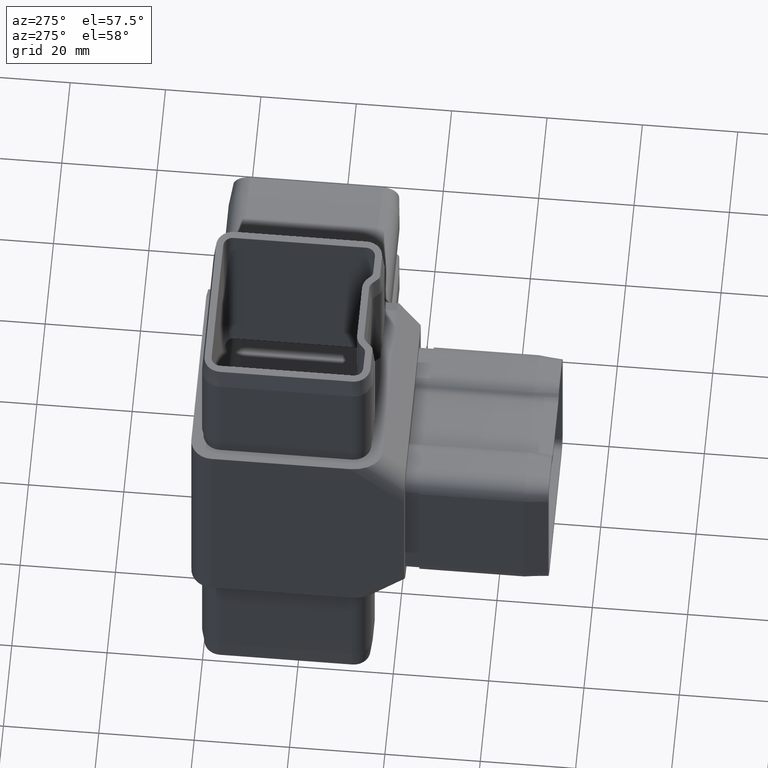
[diagram: clean part render]
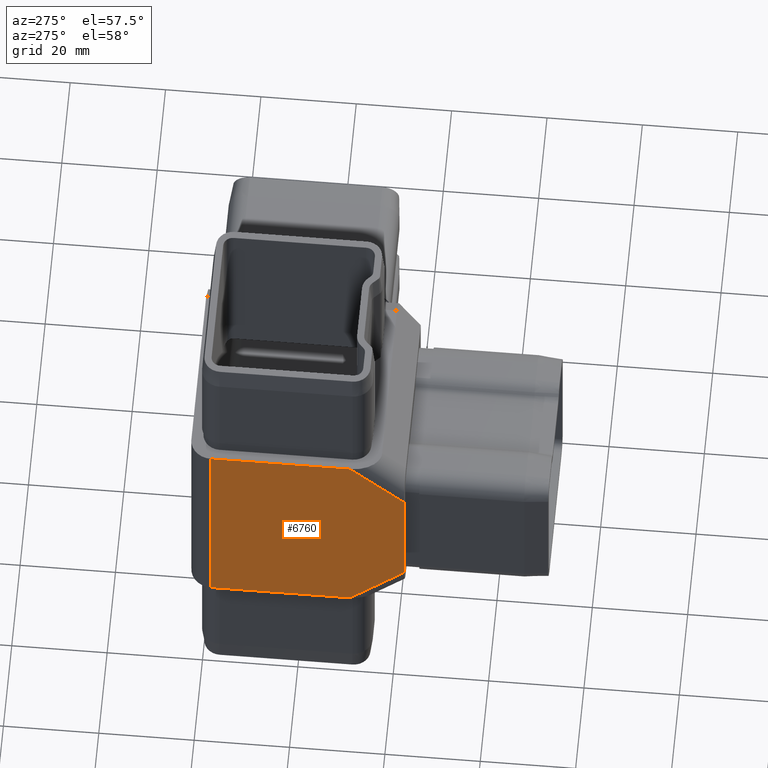
[diagram: same view with one face highlighted and labeled with its STEP entity id]
A machine part, auxiliary view. The second image highlights one B-rep face of the part: STEP entity #6760.
In plain terms, the highlighted planar face has unit normal (1, 0, -0).
Its self-contained STEP definition (entity closure, byte-faithful):
#32 = VECTOR ( 'NONE', #14871, 1000.000000000000000 ) ;
#372 = ORIENTED_EDGE ( 'NONE', *, *, #18265, .T. ) ;
#903 = CARTESIAN_POINT ( 'NONE',  ( -22.50000000000000400, -11.13603896932108000, -25.00000000000000000 ) ) ;
#1253 = CARTESIAN_POINT ( 'NONE',  ( -22.50000000000000000, -22.50000000000000400, 25.00000000000000000 ) ) ;
#1261 = VECTOR ( 'NONE', #4392, 1000.000000000000000 ) ;
#1273 = ORIENTED_EDGE ( 'NONE', *, *, #12837, .T. ) ;
#1316 = DIRECTION ( 'NONE',  ( -1.090341985197063300E-016, 0.7071067811865458000, 0.7071067811865492400 ) ) ;
#1396 = CARTESIAN_POINT ( 'NONE',  ( -22.50000000000000700, 22.49999999999999600, 25.00000000000000000 ) ) ;
#1691 = PLANE ( 'NONE',  #1954 ) ;
#1909 = VERTEX_POINT ( 'NONE', #6152 ) ;
#1954 = AXIS2_PLACEMENT_3D ( 'NONE', #1396, #11079, #15968 ) ;
#2343 = FACE_OUTER_BOUND ( 'NONE', #4366, .T. ) ;
#2513 = VERTEX_POINT ( 'NONE', #903 ) ;
#3083 = VERTEX_POINT ( 'NONE', #6762 ) ;
#3397 = EDGE_CURVE ( 'NONE', #14899, #17065, #16256, .T. ) ;
#4366 = EDGE_LOOP ( 'NONE', ( #12856, #372, #10661, #1273, #15799, #12109 ) ) ;
#4392 = DIRECTION ( 'NONE',  ( 1.541976423090495400E-016, -1.000000000000000000, 0.0000000000000000000 ) ) ;
#4801 = DIRECTION ( 'NONE',  ( 0.0000000000000000000, 0.0000000000000000000, -1.000000000000000000 ) ) ;
#4853 = CARTESIAN_POINT ( 'NONE',  ( -22.50000000000000400, -11.13603896932108000, 25.00000000000000000 ) ) ;
#5083 = VECTOR ( 'NONE', #14218, 1000.000000000000000 ) ;
#5543 = LINE ( 'NONE', #11197, #15192 ) ;
#6114 = DIRECTION ( 'NONE',  ( 1.541976423090495400E-016, -1.000000000000000000, 0.0000000000000000000 ) ) ;
#6152 = CARTESIAN_POINT ( 'NONE',  ( -22.50000000000000700, 17.99999999999999600, 25.00000000000000000 ) ) ;
#6760 = ADVANCED_FACE ( 'NONE', ( #2343 ), #1691, .F. ) ;
#6762 = CARTESIAN_POINT ( 'NONE',  ( -22.50000000000000700, 17.99999999999999600, -25.00000000000000000 ) ) ;
#6956 = CARTESIAN_POINT ( 'NONE',  ( -22.50000000000000000, -19.31801948466055000, -16.81801948466051000 ) ) ;
#7360 = LINE ( 'NONE', #6956, #32 ) ;
#8613 = LINE ( 'NONE', #17367, #1261 ) ;
#9857 = CARTESIAN_POINT ( 'NONE',  ( -22.50000000000000000, -22.50000000000000400, -13.63603896932103700 ) ) ;
#10356 = VECTOR ( 'NONE', #1316, 1000.000000000000000 ) ;
#10449 = VECTOR ( 'NONE', #6114, 1000.000000000000000 ) ;
#10661 = ORIENTED_EDGE ( 'NONE', *, *, #17628, .T. ) ;
#10924 = EDGE_CURVE ( 'NONE', #1909, #20947, #17849, .T. ) ;
#11079 = DIRECTION ( 'NONE',  ( 1.000000000000000000, 1.541976423090495400E-016, -0.0000000000000000000 ) ) ;
#11197 = CARTESIAN_POINT ( 'NONE',  ( -22.50000000000000700, 17.99999999999999600, 25.00000000000000000 ) ) ;
#12109 = ORIENTED_EDGE ( 'NONE', *, *, #19018, .T. ) ;
#12837 = EDGE_CURVE ( 'NONE', #2513, #17065, #7360, .T. ) ;
#12856 = ORIENTED_EDGE ( 'NONE', *, *, #10924, .F. ) ;
#12858 = CARTESIAN_POINT ( 'NONE',  ( -22.50000000000000000, -14.31801948466052500, 21.81801948466055700 ) ) ;
#14218 = DIRECTION ( 'NONE',  ( -0.0000000000000000000, -0.0000000000000000000, -1.000000000000000000 ) ) ;
#14871 = DIRECTION ( 'NONE',  ( 1.090341985197063300E-016, -0.7071067811865458000, 0.7071067811865492400 ) ) ;
#14899 = VERTEX_POINT ( 'NONE', #19822 ) ;
#15192 = VECTOR ( 'NONE', #4801, 1000.000000000000000 ) ;
#15799 = ORIENTED_EDGE ( 'NONE', *, *, #3397, .F. ) ;
#15968 = DIRECTION ( 'NONE',  ( -1.541976423090495400E-016, 1.000000000000000000, 0.0000000000000000000 ) ) ;
#16256 = LINE ( 'NONE', #1253, #5083 ) ;
#17065 = VERTEX_POINT ( 'NONE', #9857 ) ;
#17367 = CARTESIAN_POINT ( 'NONE',  ( -22.50000000000000700, 22.49999999999999600, -25.00000000000000000 ) ) ;
#17628 = EDGE_CURVE ( 'NONE', #3083, #2513, #8613, .T. ) ;
#17849 = LINE ( 'NONE', #19377, #10449 ) ;
#18265 = EDGE_CURVE ( 'NONE', #1909, #3083, #5543, .T. ) ;
#19018 = EDGE_CURVE ( 'NONE', #14899, #20947, #19529, .T. ) ;
#19377 = CARTESIAN_POINT ( 'NONE',  ( -22.50000000000000700, 22.49999999999999600, 25.00000000000000000 ) ) ;
#19529 = LINE ( 'NONE', #12858, #10356 ) ;
#19822 = CARTESIAN_POINT ( 'NONE',  ( -22.50000000000000000, -22.50000000000000400, 13.63603896932103900 ) ) ;
#20947 = VERTEX_POINT ( 'NONE', #4853 ) ;